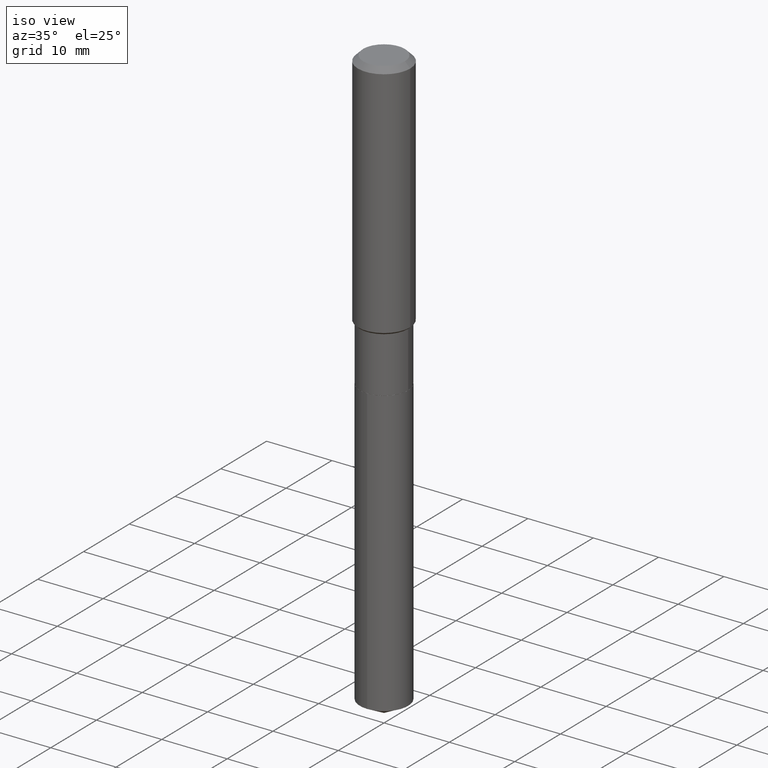
[diagram: clean part render]
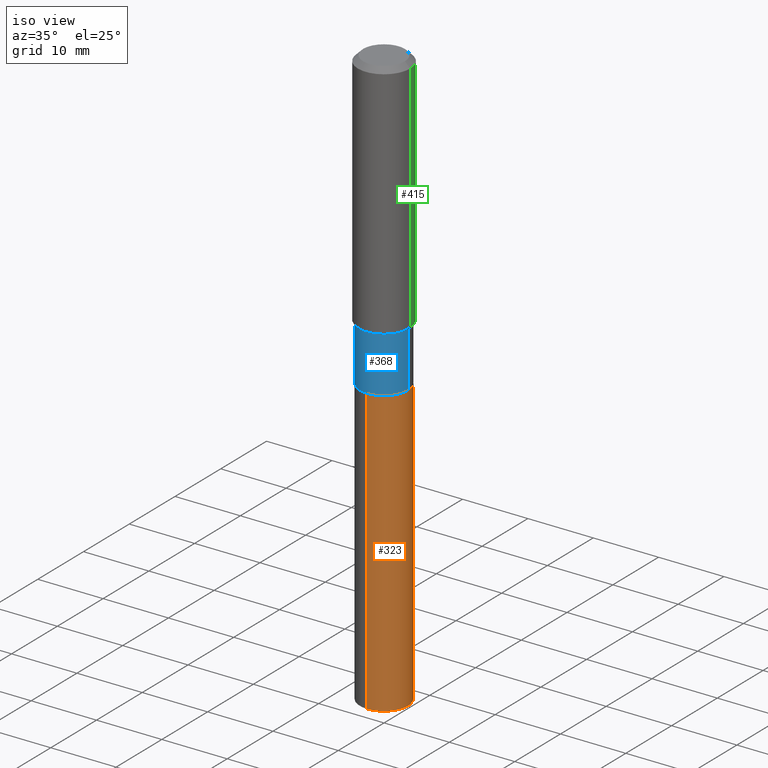
[diagram: same view with three faces highlighted in distinct colors, each labeled with its STEP entity id]
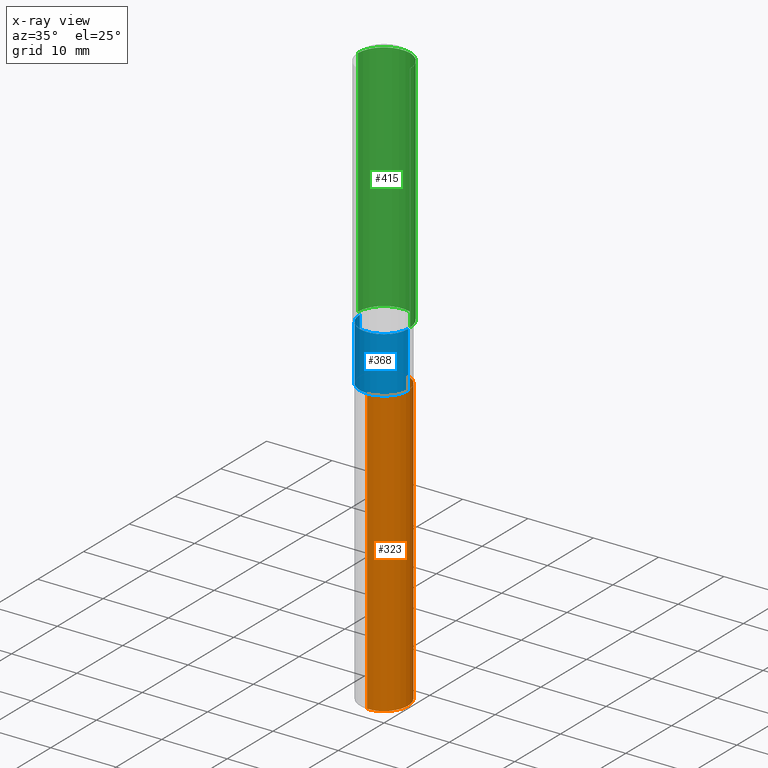
[diagram: x-ray of the same camera — body ghosted, the three highlighted faces saturated]
A machine part, iso view with three faces highlighted in distinct colors.
The next image is the same camera in x-ray (body ghosted, the three faces saturated) — at least one of them is partly hidden behind the body in this view.
Their STEP definitions:

[orange] entity #323 — the highlighted cylindrical surface (edge-blend (fillet) strip) has radius 3.6995 mm, axis along (-0, 0, 1).
#3 = CIRCLE ( 'NONE', #219, 0.1456500000000000017 ) ;
#17 = DIRECTION ( 'NONE',  ( -2.445434866327650080E-29, 3.491529942650802761E-15, 1.000000000000000000 ) ) ;
#23 = ORIENTED_EDGE ( 'NONE', *, *, #468, .F. ) ;
#39 = CARTESIAN_POINT ( 'NONE',  ( 8.571937176658098005E-29, -1.223862122627008641E-14, -3.505256521278505843 ) ) ;
#44 = FACE_OUTER_BOUND ( 'NONE', #403, .T. ) ;
#68 = ORIENTED_EDGE ( 'NONE', *, *, #246, .F. ) ;
#72 = AXIS2_PLACEMENT_3D ( 'NONE', #375, #378, #341 ) ;
#75 = ORIENTED_EDGE ( 'NONE', *, *, #449, .T. ) ;
#99 = CARTESIAN_POINT ( 'NONE',  ( 1.034905494634629320E-15, 0.1456499999999937289, -1.787400000000000988 ) ) ;
#108 = LINE ( 'NONE', #393, #336 ) ;
#112 = DIRECTION ( 'NONE',  ( -2.445434866327650080E-29, 3.491529942650802761E-15, 1.000000000000000000 ) ) ;
#135 = DIRECTION ( 'NONE',  ( -2.445434866327650080E-29, 3.491529942650802761E-15, 1.000000000000000000 ) ) ;
#157 = VERTEX_POINT ( 'NONE', #289 ) ;
#163 = CYLINDRICAL_SURFACE ( 'NONE', #72, 0.1456500000000000017 ) ;
#219 = AXIS2_PLACEMENT_3D ( 'NONE', #39, #334, #372 ) ;
#230 = AXIS2_PLACEMENT_3D ( 'NONE', #391, #17, #443 ) ;
#246 = EDGE_CURVE ( 'NONE', #157, #293, #108, .T. ) ;
#289 = CARTESIAN_POINT ( 'NONE',  ( -1.017068514004918675E-15, -0.1456500000000122419, -3.505256521278504955 ) ) ;
#293 = VERTEX_POINT ( 'NONE', #333 ) ;
#301 = EDGE_CURVE ( 'NONE', #157, #462, #3, .T. ) ;
#323 = ADVANCED_FACE ( 'NONE', ( #44 ), #163, .T. ) ;
#333 = CARTESIAN_POINT ( 'NONE',  ( -1.017068514004961077E-15, -0.1456500000000062467, -1.787399999999999878 ) ) ;
#334 = DIRECTION ( 'NONE',  ( -2.445434866327650080E-29, 3.491529942650802761E-15, 1.000000000000000000 ) ) ;
#336 = VECTOR ( 'NONE', #112, 39.37007874015748143 ) ;
#341 = DIRECTION ( 'NONE',  ( -6.982962677686265922E-15, -1.000000000000000000, 3.751250248766581581E-15 ) ) ;
#369 = CIRCLE ( 'NONE', #230, 0.1456500000000000017 ) ;
#372 = DIRECTION ( 'NONE',  ( -6.982962677686265922E-15, -1.000000000000000000, 3.751250248766581581E-15 ) ) ;
#375 = CARTESIAN_POINT ( 'NONE',  ( 4.371030944175314676E-29, -6.240673745048239449E-15, -1.787400000000000544 ) ) ;
#378 = DIRECTION ( 'NONE',  ( -2.445434866327650080E-29, 3.491529942650802761E-15, 1.000000000000000000 ) ) ;
#391 = CARTESIAN_POINT ( 'NONE',  ( 4.371030944175314676E-29, -6.240673745048239449E-15, -1.787400000000000544 ) ) ;
#393 = CARTESIAN_POINT ( 'NONE',  ( -1.017068514004960879E-15, -0.1456500000000062467, -1.787399999999999878 ) ) ;
#403 = EDGE_LOOP ( 'NONE', ( #435, #75, #23, #68 ) ) ;
#408 = CARTESIAN_POINT ( 'NONE',  ( 1.034905494634671721E-15, 0.1456499999999937289, -1.787400000000000988 ) ) ;
#413 = VECTOR ( 'NONE', #135, 39.37007874015748143 ) ;
#435 = ORIENTED_EDGE ( 'NONE', *, *, #301, .T. ) ;
#443 = DIRECTION ( 'NONE',  ( -6.982962677686265922E-15, -1.000000000000000000, 3.751250248766581581E-15 ) ) ;
#449 = EDGE_CURVE ( 'NONE', #462, #481, #463, .T. ) ;
#462 = VERTEX_POINT ( 'NONE', #472 ) ;
#463 = LINE ( 'NONE', #99, #413 ) ;
#468 = EDGE_CURVE ( 'NONE', #293, #481, #369, .T. ) ;
#472 = CARTESIAN_POINT ( 'NONE',  ( 1.034905494634671524E-15, 0.1456499999999877337, -3.505256521278506288 ) ) ;
#481 = VERTEX_POINT ( 'NONE', #408 ) ;

[blue] entity #368 — the highlighted cylindrical surface (edge-blend (fillet) strip) has radius 3.6995 mm, axis along (-0, 0, 1).
#19 = CYLINDRICAL_SURFACE ( 'NONE', #36, 0.1456500000000000017 ) ;
#32 = EDGE_CURVE ( 'NONE', #117, #111, #153, .T. ) ;
#36 = AXIS2_PLACEMENT_3D ( 'NONE', #349, #175, #106 ) ;
#41 = VECTOR ( 'NONE', #90, 39.37007874015748143 ) ;
#42 = AXIS2_PLACEMENT_3D ( 'NONE', #460, #434, #285 ) ;
#85 = EDGE_CURVE ( 'NONE', #381, #120, #126, .T. ) ;
#90 = DIRECTION ( 'NONE',  ( -2.445468806185136877E-29, 3.491481338843145188E-15, 1.000000000000000000 ) ) ;
#106 = DIRECTION ( 'NONE',  ( 1.000000000000000000, -6.982962677686265922E-15, 4.876176775795935232E-29 ) ) ;
#111 = VERTEX_POINT ( 'NONE', #192 ) ;
#117 = VERTEX_POINT ( 'NONE', #218 ) ;
#119 = CIRCLE ( 'NONE', #465, 0.1456500000000000017 ) ;
#120 = VERTEX_POINT ( 'NONE', #292 ) ;
#125 = CARTESIAN_POINT ( 'NONE',  ( 0.1456500000000000017, -1.017068514005004661E-15, 7.102151473946780073E-30 ) ) ;
#126 = LINE ( 'NONE', #125, #41 ) ;
#153 = LINE ( 'NONE', #265, #483 ) ;
#166 = DIRECTION ( 'NONE',  ( -2.445468806185136597E-29, 3.491481338843145583E-15, 1.000000000000000000 ) ) ;
#175 = DIRECTION ( 'NONE',  ( -2.445468806185136597E-29, 3.491481338843145583E-15, 1.000000000000000000 ) ) ;
#180 = DIRECTION ( 'NONE',  ( -2.445468806185136877E-29, 3.491481338843145188E-15, 1.000000000000000000 ) ) ;
#192 = CARTESIAN_POINT ( 'NONE',  ( -0.1456499999999999739, -4.620072255822716192E-15, -1.452400000000000135 ) ) ;
#218 = CARTESIAN_POINT ( 'NONE',  ( -0.1456500000000000294, -4.620072255822716192E-15, -1.786900000000000599 ) ) ;
#249 = FACE_OUTER_BOUND ( 'NONE', #321, .T. ) ;
#265 = CARTESIAN_POINT ( 'NONE',  ( -0.1456500000000000017, 1.034905494634585933E-15, -7.164428958956269648E-30 ) ) ;
#285 = DIRECTION ( 'NONE',  ( 1.000000000000000000, -6.982962677686264344E-15, 0.000000000000000000 ) ) ;
#286 = CARTESIAN_POINT ( 'NONE',  ( 0.1456500000000000017, -7.255996518383823001E-15, -1.786900000000000599 ) ) ;
#288 = CIRCLE ( 'NONE', #42, 0.1456499999999999739 ) ;
#292 = CARTESIAN_POINT ( 'NONE',  ( 0.1456499999999999739, -6.088096010540789782E-15, -1.452400000000000135 ) ) ;
#302 = ORIENTED_EDGE ( 'NONE', *, *, #390, .F. ) ;
#319 = ORIENTED_EDGE ( 'NONE', *, *, #32, .F. ) ;
#321 = EDGE_LOOP ( 'NONE', ( #319, #466, #430, #302 ) ) ;
#348 = CARTESIAN_POINT ( 'NONE',  ( 4.369808209772221874E-29, -6.238928004378817945E-15, -1.786900000000000599 ) ) ;
#349 = CARTESIAN_POINT ( 'NONE',  ( 0.000000000000000000, 0.000000000000000000, 0.000000000000000000 ) ) ;
#368 = ADVANCED_FACE ( 'NONE', ( #249 ), #19, .T. ) ;
#381 = VERTEX_POINT ( 'NONE', #286 ) ;
#382 = DIRECTION ( 'NONE',  ( 1.000000000000000000, -6.982962677686269866E-15, 0.000000000000000000 ) ) ;
#390 = EDGE_CURVE ( 'NONE', #111, #120, #288, .T. ) ;
#411 = EDGE_CURVE ( 'NONE', #117, #381, #119, .T. ) ;
#430 = ORIENTED_EDGE ( 'NONE', *, *, #85, .T. ) ;
#434 = DIRECTION ( 'NONE',  ( -2.445468806185136597E-29, 3.491481338843145583E-15, 1.000000000000000000 ) ) ;
#460 = CARTESIAN_POINT ( 'NONE',  ( 3.551798894103292391E-29, -5.071027496535785515E-15, -1.452400000000000135 ) ) ;
#465 = AXIS2_PLACEMENT_3D ( 'NONE', #348, #166, #382 ) ;
#466 = ORIENTED_EDGE ( 'NONE', *, *, #411, .T. ) ;
#483 = VECTOR ( 'NONE', #180, 39.37007874015748143 ) ;

[green] entity #415 — the highlighted cylindrical surface (edge-blend (fillet) strip) has radius 4.0005 mm, axis along (-0, 0, 1).
#11 = DIRECTION ( 'NONE',  ( 1.000000000000000000, -6.982962677686267499E-15, 4.876176775795936353E-29 ) ) ;
#26 = ORIENTED_EDGE ( 'NONE', *, *, #116, .F. ) ;
#40 = DIRECTION ( 'NONE',  ( -2.445468806185136877E-29, 3.491481338843145188E-15, 1.000000000000000000 ) ) ;
#50 = FACE_OUTER_BOUND ( 'NONE', #138, .T. ) ;
#55 = LINE ( 'NONE', #282, #268 ) ;
#63 = ORIENTED_EDGE ( 'NONE', *, *, #424, .T. ) ;
#92 = CARTESIAN_POINT ( 'NONE',  ( 0.000000000000000000, 0.000000000000000000, 0.000000000000000000 ) ) ;
#104 = CARTESIAN_POINT ( 'NONE',  ( 3.522820088749998377E-29, -5.029653442670493908E-15, -1.440549999999999997 ) ) ;
#113 = VERTEX_POINT ( 'NONE', #330 ) ;
#116 = EDGE_CURVE ( 'NONE', #113, #217, #488, .T. ) ;
#118 = CARTESIAN_POINT ( 'NONE',  ( -0.1575000000000000011, -1.450712743599868094E-15, -0.03150000000000019451 ) ) ;
#136 = VECTOR ( 'NONE', #40, 39.37007874015748143 ) ;
#138 = EDGE_LOOP ( 'NONE', ( #151, #63, #26, #173 ) ) ;
#142 = DIRECTION ( 'NONE',  ( 1.000000000000000000, -6.982962677686265922E-15, 0.000000000000000000 ) ) ;
#151 = ORIENTED_EDGE ( 'NONE', *, *, #453, .T. ) ;
#173 = ORIENTED_EDGE ( 'NONE', *, *, #274, .F. ) ;
#178 = VERTEX_POINT ( 'NONE', #436 ) ;
#179 = DIRECTION ( 'NONE',  ( -2.445468806185136597E-29, 3.491481338843145583E-15, 1.000000000000000000 ) ) ;
#190 = CARTESIAN_POINT ( 'NONE',  ( 0.1575000000000001676, -6.129470064406082177E-15, -1.440549999999999997 ) ) ;
#206 = DIRECTION ( 'NONE',  ( -2.445468806185136877E-29, 3.491481338843145188E-15, 1.000000000000000000 ) ) ;
#217 = VERTEX_POINT ( 'NONE', #118 ) ;
#233 = AXIS2_PLACEMENT_3D ( 'NONE', #446, #179, #142 ) ;
#245 = DIRECTION ( 'NONE',  ( 1.000000000000000000, -6.982962677686267499E-15, 0.000000000000000000 ) ) ;
#251 = DIRECTION ( 'NONE',  ( -2.445468806185136597E-29, 3.491481338843145583E-15, 1.000000000000000000 ) ) ;
#268 = VECTOR ( 'NONE', #206, 39.37007874015748143 ) ;
#274 = EDGE_CURVE ( 'NONE', #353, #113, #396, .T. ) ;
#282 = CARTESIAN_POINT ( 'NONE',  ( -0.1575000000000000844, 1.119104808822158392E-15, -7.747322767151481189E-30 ) ) ;
#299 = CIRCLE ( 'NONE', #305, 0.1575000000000001676 ) ;
#305 = AXIS2_PLACEMENT_3D ( 'NONE', #104, #251, #245 ) ;
#310 = DIRECTION ( 'NONE',  ( -2.445468806185136597E-29, 3.491481338843145583E-15, 1.000000000000000000 ) ) ;
#330 = CARTESIAN_POINT ( 'NONE',  ( 0.1575000000000000011, -1.209798283909146741E-15, -0.03150000000000019451 ) ) ;
#351 = CYLINDRICAL_SURFACE ( 'NONE', #371, 0.1575000000000000844 ) ;
#353 = VERTEX_POINT ( 'NONE', #190 ) ;
#371 = AXIS2_PLACEMENT_3D ( 'NONE', #92, #310, #11 ) ;
#396 = LINE ( 'NONE', #448, #136 ) ;
#415 = ADVANCED_FACE ( 'NONE', ( #50 ), #351, .T. ) ;
#424 = EDGE_CURVE ( 'NONE', #178, #217, #55, .T. ) ;
#436 = CARTESIAN_POINT ( 'NONE',  ( -0.1575000000000001676, -3.910548633848334727E-15, -1.440549999999999997 ) ) ;
#446 = CARTESIAN_POINT ( 'NONE',  ( 7.703226739483228723E-31, -1.099816621735597661E-16, -0.03150000000000019451 ) ) ;
#448 = CARTESIAN_POINT ( 'NONE',  ( 0.1575000000000000844, -1.099816621735587677E-15, 7.679978421878603638E-30 ) ) ;
#453 = EDGE_CURVE ( 'NONE', #353, #178, #299, .T. ) ;
#488 = CIRCLE ( 'NONE', #233, 0.1575000000000000011 ) ;